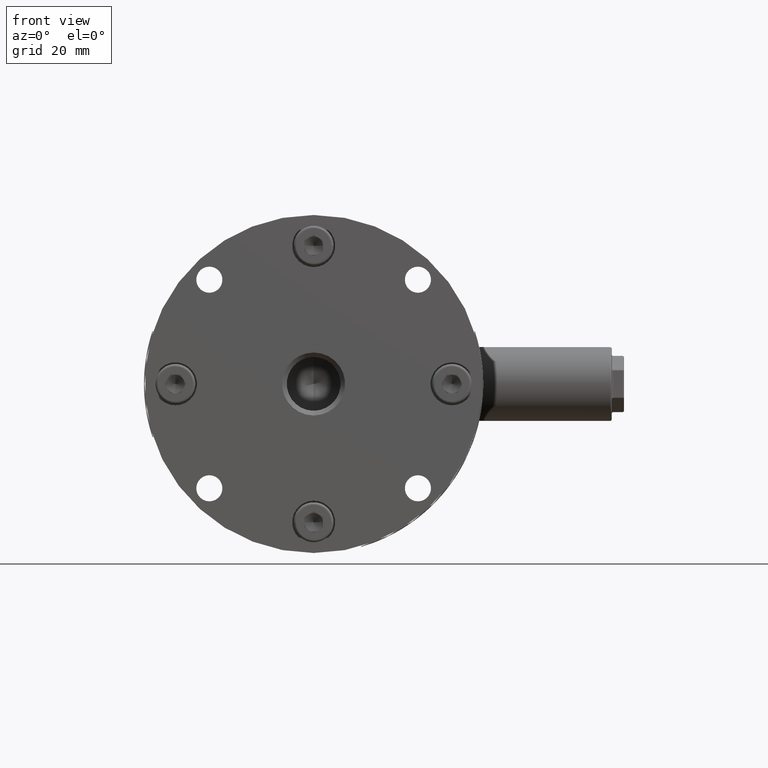
[diagram: clean part render]
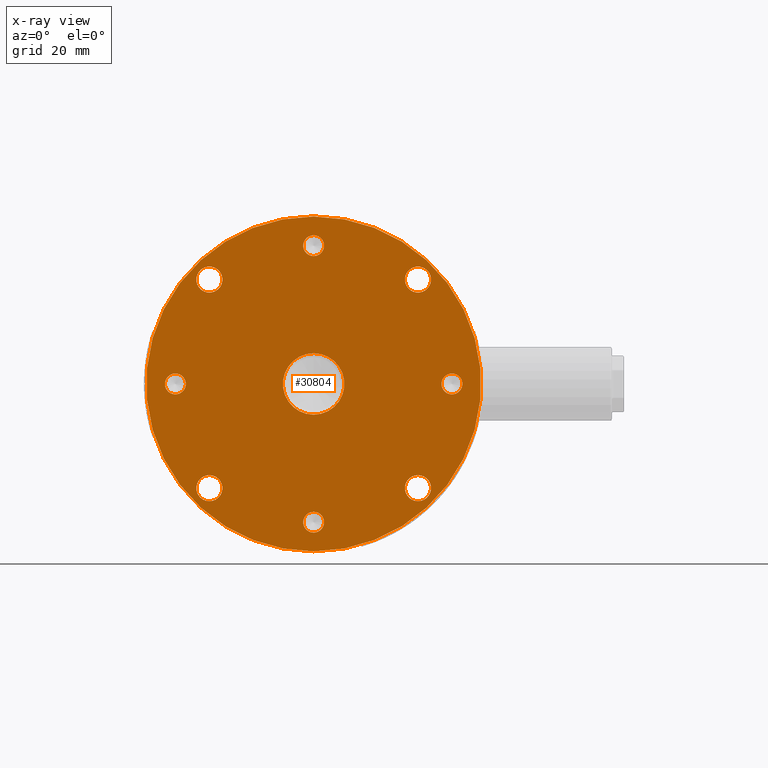
[diagram: x-ray — body ghosted, one internal face saturated and labeled with its STEP entity id]
A machine part, front view, then the same camera in x-ray: the body is ghosted and one INTERNAL B-rep face — a face not visible from any outside direction — is saturated and labeled: STEP entity #30804.
In plain terms, the highlighted planar face has unit normal (0, -1, 0).
Its self-contained STEP definition (entity closure, byte-faithful):
#7 = CARTESIAN_POINT ( 'NONE',  ( -45.00000000000000000, 15.00000000000000000, 4.011592430874214600E-032 ) ) ;
#126 = VERTEX_POINT ( 'NONE', #13926 ) ;
#383 = DIRECTION ( 'NONE',  ( 0.0000000000000000000, -1.000000000000000000, 0.0000000000000000000 ) ) ;
#397 = ORIENTED_EDGE ( 'NONE', *, *, #9925, .T. ) ;
#515 = ORIENTED_EDGE ( 'NONE', *, *, #18841, .F. ) ;
#919 = FACE_BOUND ( 'NONE', #27840, .T. ) ;
#1902 = CARTESIAN_POINT ( 'NONE',  ( -33.94112549695434900, 15.00000000000000000, -33.94112549695425000 ) ) ;
#1975 = VERTEX_POINT ( 'NONE', #8916 ) ;
#2923 = CARTESIAN_POINT ( 'NONE',  ( -33.94112549695434900, 15.00000000000000000, 29.69112549695425000 ) ) ;
#3243 = CIRCLE ( 'NONE', #28361, 3.400000000000000400 ) ;
#3322 = EDGE_CURVE ( 'NONE', #34028, #10095, #34217, .T. ) ;
#3567 = ORIENTED_EDGE ( 'NONE', *, *, #23781, .F. ) ;
#3692 = CIRCLE ( 'NONE', #29966, 54.50000000000000000 ) ;
#3703 = ORIENTED_EDGE ( 'NONE', *, *, #21674, .F. ) ;
#3731 = CARTESIAN_POINT ( 'NONE',  ( 33.94112549695434900, 15.00000000000000000, 33.94112549695425000 ) ) ;
#3811 = AXIS2_PLACEMENT_3D ( 'NONE', #13523, #19085, #33866 ) ;
#4180 = CIRCLE ( 'NONE', #36845, 4.250000000000000000 ) ;
#4395 = EDGE_CURVE ( 'NONE', #35860, #14597, #12822, .T. ) ;
#4865 = DIRECTION ( 'NONE',  ( 0.0000000000000000000, -1.000000000000000000, 0.0000000000000000000 ) ) ;
#5120 = CARTESIAN_POINT ( 'NONE',  ( 33.94112549695434900, 15.00000000000000000, 38.19112549695425000 ) ) ;
#5599 = CARTESIAN_POINT ( 'NONE',  ( -33.94112549695434900, 15.00000000000000000, -38.19112549695425000 ) ) ;
#5731 = CIRCLE ( 'NONE', #20102, 10.00000000000000000 ) ;
#5836 = ORIENTED_EDGE ( 'NONE', *, *, #27653, .F. ) ;
#5990 = CARTESIAN_POINT ( 'NONE',  ( -33.94112549695434900, 15.00000000000000000, -33.94112549695425000 ) ) ;
#6390 = CARTESIAN_POINT ( 'NONE',  ( -45.00000000000000000, 15.00000000000000000, -3.399999999999999900 ) ) ;
#6739 = AXIS2_PLACEMENT_3D ( 'NONE', #5990, #26359, #14939 ) ;
#6881 = FACE_BOUND ( 'NONE', #25337, .T. ) ;
#6991 = CARTESIAN_POINT ( 'NONE',  ( 33.94112549695434900, 15.00000000000000000, 29.69112549695425000 ) ) ;
#7035 = ORIENTED_EDGE ( 'NONE', *, *, #9577, .F. ) ;
#7421 = EDGE_LOOP ( 'NONE', ( #28508, #37019 ) ) ;
#7498 = DIRECTION ( 'NONE',  ( 0.0000000000000000000, 0.0000000000000000000, -1.000000000000000000 ) ) ;
#7516 = CARTESIAN_POINT ( 'NONE',  ( -33.94112549695434900, 15.00000000000000000, 33.94112549695425000 ) ) ;
#7519 = AXIS2_PLACEMENT_3D ( 'NONE', #18665, #10195, #15634 ) ;
#7893 = VERTEX_POINT ( 'NONE', #27073 ) ;
#7940 = DIRECTION ( 'NONE',  ( 0.0000000000000000000, 0.0000000000000000000, -1.000000000000000000 ) ) ;
#8916 = CARTESIAN_POINT ( 'NONE',  ( 45.00000000000000000, 15.00000000000000000, -3.399999999999999900 ) ) ;
#9285 = VERTEX_POINT ( 'NONE', #29774 ) ;
#9549 = AXIS2_PLACEMENT_3D ( 'NONE', #15319, #21187, #24089 ) ;
#9577 = EDGE_CURVE ( 'NONE', #10095, #34028, #16675, .T. ) ;
#9803 = PLANE ( 'NONE',  #34794 ) ;
#9925 = EDGE_CURVE ( 'NONE', #24041, #37775, #29845, .T. ) ;
#10054 = DIRECTION ( 'NONE',  ( 0.0000000000000000000, -1.000000000000000000, 0.0000000000000000000 ) ) ;
#10095 = VERTEX_POINT ( 'NONE', #35952 ) ;
#10195 = DIRECTION ( 'NONE',  ( 0.0000000000000000000, -1.000000000000000000, 6.123031769111888800E-017 ) ) ;
#10499 = DIRECTION ( 'NONE',  ( 0.0000000000000000000, -1.000000000000000000, 6.123031769111888800E-017 ) ) ;
#10731 = EDGE_CURVE ( 'NONE', #37047, #15554, #28017, .T. ) ;
#11502 = DIRECTION ( 'NONE',  ( 0.0000000000000000000, -1.000000000000000000, 6.123031769111888800E-017 ) ) ;
#12129 = AXIS2_PLACEMENT_3D ( 'NONE', #15667, #36045, #25046 ) ;
#12601 = CARTESIAN_POINT ( 'NONE',  ( 0.0000000000000000000, 15.00000000000000000, 0.0000000000000000000 ) ) ;
#12822 = CIRCLE ( 'NONE', #24171, 4.250000000000000000 ) ;
#12845 = AXIS2_PLACEMENT_3D ( 'NONE', #32632, #15206, #24340 ) ;
#13373 = CARTESIAN_POINT ( 'NONE',  ( 0.0000000000000000000, 15.00000000000000000, 0.0000000000000000000 ) ) ;
#13394 = DIRECTION ( 'NONE',  ( 0.0000000000000000000, -1.000000000000000000, 6.123031769111888800E-017 ) ) ;
#13523 = CARTESIAN_POINT ( 'NONE',  ( -33.94112549695434900, 15.00000000000000000, 33.94112549695425000 ) ) ;
#13910 = CARTESIAN_POINT ( 'NONE',  ( 33.94112549695434900, 15.00000000000000000, 33.94112549695425000 ) ) ;
#13926 = CARTESIAN_POINT ( 'NONE',  ( 1.224646799147353300E-015, 15.00000000000000000, 10.00000000000000000 ) ) ;
#14215 = CARTESIAN_POINT ( 'NONE',  ( -45.00000000000000000, 15.00000000000000000, 4.011592430874214600E-032 ) ) ;
#14597 = VERTEX_POINT ( 'NONE', #6991 ) ;
#14651 = FACE_BOUND ( 'NONE', #24247, .T. ) ;
#14692 = EDGE_CURVE ( 'NONE', #17756, #126, #5731, .T. ) ;
#14773 = CARTESIAN_POINT ( 'NONE',  ( 0.0000000000000000000, 15.00000000000000000, -10.00000000000000000 ) ) ;
#14845 = DIRECTION ( 'NONE',  ( 0.0000000000000000000, -1.000000000000000000, 6.123031769111888800E-017 ) ) ;
#14939 = DIRECTION ( 'NONE',  ( 0.0000000000000000000, 0.0000000000000000000, -1.000000000000000000 ) ) ;
#15206 = DIRECTION ( 'NONE',  ( 0.0000000000000000000, -1.000000000000000000, 0.0000000000000000000 ) ) ;
#15319 = CARTESIAN_POINT ( 'NONE',  ( 33.94112549695434900, 15.00000000000000000, -33.94112549695425000 ) ) ;
#15365 = ORIENTED_EDGE ( 'NONE', *, *, #27144, .F. ) ;
#15531 = FACE_BOUND ( 'NONE', #21486, .T. ) ;
#15554 = VERTEX_POINT ( 'NONE', #6390 ) ;
#15573 = CIRCLE ( 'NONE', #32781, 3.399999999999999900 ) ;
#15634 = DIRECTION ( 'NONE',  ( 0.0000000000000000000, 0.0000000000000000000, -1.000000000000000000 ) ) ;
#15667 = CARTESIAN_POINT ( 'NONE',  ( 45.00000000000000000, 15.00000000000000000, 4.011592430874214600E-032 ) ) ;
#15732 = DIRECTION ( 'NONE',  ( 0.0000000000000000000, 0.0000000000000000000, -1.000000000000000000 ) ) ;
#15804 = CARTESIAN_POINT ( 'NONE',  ( 33.94112549695434900, 15.00000000000000000, -29.69112549695425000 ) ) ;
#16028 = AXIS2_PLACEMENT_3D ( 'NONE', #1902, #16707, #7940 ) ;
#16197 = AXIS2_PLACEMENT_3D ( 'NONE', #29457, #383, #32138 ) ;
#16218 = DIRECTION ( 'NONE',  ( 0.0000000000000000000, 0.0000000000000000000, -1.000000000000000000 ) ) ;
#16511 = ORIENTED_EDGE ( 'NONE', *, *, #10731, .F. ) ;
#16675 = CIRCLE ( 'NONE', #24009, 4.249999999999996400 ) ;
#16707 = DIRECTION ( 'NONE',  ( 0.0000000000000000000, -1.000000000000000000, 6.123031769111888800E-017 ) ) ;
#16803 = DIRECTION ( 'NONE',  ( 0.0000000000000000000, 0.0000000000000000000, -1.000000000000000000 ) ) ;
#16883 = FACE_OUTER_BOUND ( 'NONE', #36573, .T. ) ;
#16941 = DIRECTION ( 'NONE',  ( 0.0000000000000000000, 0.0000000000000000000, -1.000000000000000000 ) ) ;
#16976 = ORIENTED_EDGE ( 'NONE', *, *, #37840, .F. ) ;
#17756 = VERTEX_POINT ( 'NONE', #14773 ) ;
#17780 = ORIENTED_EDGE ( 'NONE', *, *, #19512, .F. ) ;
#17896 = EDGE_CURVE ( 'NONE', #20341, #19524, #21061, .T. ) ;
#18001 = CARTESIAN_POINT ( 'NONE',  ( 0.0000000000000000000, 15.00000000000000000, -48.39999999999999900 ) ) ;
#18263 = CIRCLE ( 'NONE', #7519, 3.400000000000000400 ) ;
#18266 = FACE_BOUND ( 'NONE', #32372, .T. ) ;
#18665 = CARTESIAN_POINT ( 'NONE',  ( 0.0000000000000000000, 15.00000000000000000, -45.00000000000000000 ) ) ;
#18841 = EDGE_CURVE ( 'NONE', #7893, #20245, #25069, .T. ) ;
#19085 = DIRECTION ( 'NONE',  ( 0.0000000000000000000, -1.000000000000000000, 6.123031769111888800E-017 ) ) ;
#19164 = CARTESIAN_POINT ( 'NONE',  ( -45.00000000000000000, 15.00000000000000000, 3.400000000000000400 ) ) ;
#19193 = CARTESIAN_POINT ( 'NONE',  ( 6.704941225331758800E-015, 15.00000000000000000, -54.50000000000000000 ) ) ;
#19488 = EDGE_LOOP ( 'NONE', ( #5836, #16511 ) ) ;
#19512 = EDGE_CURVE ( 'NONE', #19834, #29877, #18263, .T. ) ;
#19524 = VERTEX_POINT ( 'NONE', #27333 ) ;
#19670 = CARTESIAN_POINT ( 'NONE',  ( 4.163799117101000100E-016, 15.00000000000000000, -41.60000000000000100 ) ) ;
#19675 = ORIENTED_EDGE ( 'NONE', *, *, #3322, .F. ) ;
#19834 = VERTEX_POINT ( 'NONE', #18001 ) ;
#20102 = AXIS2_PLACEMENT_3D ( 'NONE', #13373, #31024, #7498 ) ;
#20245 = VERTEX_POINT ( 'NONE', #5599 ) ;
#20341 = VERTEX_POINT ( 'NONE', #2923 ) ;
#20619 = AXIS2_PLACEMENT_3D ( 'NONE', #14215, #28835, #28961 ) ;
#21061 = CIRCLE ( 'NONE', #3811, 4.250000000000000000 ) ;
#21085 = DIRECTION ( 'NONE',  ( 0.0000000000000000000, -1.000000000000000000, 6.123031769111888800E-017 ) ) ;
#21187 = DIRECTION ( 'NONE',  ( 0.0000000000000000000, -1.000000000000000000, 6.123031769111888800E-017 ) ) ;
#21203 = AXIS2_PLACEMENT_3D ( 'NONE', #27410, #21085, #35972 ) ;
#21383 = DIRECTION ( 'NONE',  ( 0.0000000000000000000, 0.0000000000000000000, -1.000000000000000000 ) ) ;
#21486 = EDGE_LOOP ( 'NONE', ( #3703, #25825 ) ) ;
#21560 = CARTESIAN_POINT ( 'NONE',  ( 0.0000000000000000000, 15.00000000000000000, -45.00000000000000000 ) ) ;
#21674 = EDGE_CURVE ( 'NONE', #1975, #34453, #35049, .T. ) ;
#22383 = FACE_BOUND ( 'NONE', #26975, .T. ) ;
#22693 = CARTESIAN_POINT ( 'NONE',  ( 45.00000000000000000, 15.00000000000000000, 4.011592430874214600E-032 ) ) ;
#22871 = CIRCLE ( 'NONE', #24397, 4.250000000000000000 ) ;
#23224 = EDGE_CURVE ( 'NONE', #14597, #35860, #4180, .T. ) ;
#23271 = CARTESIAN_POINT ( 'NONE',  ( 0.0000000000000000000, 15.00000000000000000, 41.60000000000000100 ) ) ;
#23295 = FACE_BOUND ( 'NONE', #26135, .T. ) ;
#23781 = EDGE_CURVE ( 'NONE', #19524, #20341, #22871, .T. ) ;
#24003 = DIRECTION ( 'NONE',  ( 0.0000000000000000000, -1.000000000000000000, 6.123031769111888800E-017 ) ) ;
#24009 = AXIS2_PLACEMENT_3D ( 'NONE', #30245, #30378, #15732 ) ;
#24041 = VERTEX_POINT ( 'NONE', #19193 ) ;
#24089 = DIRECTION ( 'NONE',  ( 0.0000000000000000000, 0.0000000000000000000, -1.000000000000000000 ) ) ;
#24171 = AXIS2_PLACEMENT_3D ( 'NONE', #13910, #34235, #16803 ) ;
#24186 = CIRCLE ( 'NONE', #12129, 3.399999999999999900 ) ;
#24216 = ORIENTED_EDGE ( 'NONE', *, *, #17896, .F. ) ;
#24247 = EDGE_LOOP ( 'NONE', ( #17780, #16976 ) ) ;
#24340 = DIRECTION ( 'NONE',  ( 0.0000000000000000000, 0.0000000000000000000, -1.000000000000000000 ) ) ;
#24397 = AXIS2_PLACEMENT_3D ( 'NONE', #7516, #13394, #37177 ) ;
#24670 = CIRCLE ( 'NONE', #29236, 3.400000000000000400 ) ;
#25046 = DIRECTION ( 'NONE',  ( 0.0000000000000000000, 0.0000000000000000000, -1.000000000000000000 ) ) ;
#25069 = CIRCLE ( 'NONE', #16028, 4.249999999999996400 ) ;
#25337 = EDGE_LOOP ( 'NONE', ( #35233, #37655 ) ) ;
#25825 = ORIENTED_EDGE ( 'NONE', *, *, #30463, .F. ) ;
#26135 = EDGE_LOOP ( 'NONE', ( #37503, #515 ) ) ;
#26213 = CIRCLE ( 'NONE', #21203, 3.400000000000000400 ) ;
#26359 = DIRECTION ( 'NONE',  ( 0.0000000000000000000, -1.000000000000000000, 6.123031769111888800E-017 ) ) ;
#26959 = CIRCLE ( 'NONE', #6739, 4.249999999999996400 ) ;
#26975 = EDGE_LOOP ( 'NONE', ( #33818, #15365 ) ) ;
#27073 = CARTESIAN_POINT ( 'NONE',  ( -33.94112549695434900, 15.00000000000000000, -29.69112549695425000 ) ) ;
#27144 = EDGE_CURVE ( 'NONE', #9285, #32981, #3243, .T. ) ;
#27250 = DIRECTION ( 'NONE',  ( 0.0000000000000000000, -1.000000000000000000, 6.123031769111888800E-017 ) ) ;
#27333 = CARTESIAN_POINT ( 'NONE',  ( -33.94112549695434900, 15.00000000000000000, 38.19112549695425000 ) ) ;
#27363 = FACE_BOUND ( 'NONE', #19488, .T. ) ;
#27410 = CARTESIAN_POINT ( 'NONE',  ( 0.0000000000000000000, 15.00000000000000000, 45.00000000000000000 ) ) ;
#27653 = EDGE_CURVE ( 'NONE', #15554, #37047, #15573, .T. ) ;
#27669 = CARTESIAN_POINT ( 'NONE',  ( 0.0000000000000000000, 15.00000000000000000, 0.0000000000000000000 ) ) ;
#27840 = EDGE_LOOP ( 'NONE', ( #24216, #3567 ) ) ;
#27887 = CARTESIAN_POINT ( 'NONE',  ( 0.0000000000000000000, 15.00000000000000000, 45.00000000000000000 ) ) ;
#28017 = CIRCLE ( 'NONE', #20619, 3.399999999999999900 ) ;
#28233 = CIRCLE ( 'NONE', #12845, 10.00000000000000000 ) ;
#28361 = AXIS2_PLACEMENT_3D ( 'NONE', #27887, #10499, #31432 ) ;
#28508 = ORIENTED_EDGE ( 'NONE', *, *, #23224, .F. ) ;
#28835 = DIRECTION ( 'NONE',  ( 0.0000000000000000000, -1.000000000000000000, 6.123031769111888800E-017 ) ) ;
#28961 = DIRECTION ( 'NONE',  ( 0.0000000000000000000, 0.0000000000000000000, -1.000000000000000000 ) ) ;
#28977 = ORIENTED_EDGE ( 'NONE', *, *, #37370, .T. ) ;
#29236 = AXIS2_PLACEMENT_3D ( 'NONE', #21560, #27250, #36428 ) ;
#29257 = AXIS2_PLACEMENT_3D ( 'NONE', #22693, #11502, #16941 ) ;
#29457 = CARTESIAN_POINT ( 'NONE',  ( 0.0000000000000000000, 15.00000000000000000, 0.0000000000000000000 ) ) ;
#29483 = EDGE_CURVE ( 'NONE', #126, #17756, #28233, .T. ) ;
#29774 = CARTESIAN_POINT ( 'NONE',  ( 4.163799117101000100E-016, 15.00000000000000000, 48.39999999999999900 ) ) ;
#29845 = CIRCLE ( 'NONE', #16197, 54.50000000000000000 ) ;
#29877 = VERTEX_POINT ( 'NONE', #19670 ) ;
#29966 = AXIS2_PLACEMENT_3D ( 'NONE', #27669, #4865, #16218 ) ;
#30245 = CARTESIAN_POINT ( 'NONE',  ( 33.94112549695434900, 15.00000000000000000, -33.94112549695425000 ) ) ;
#30360 = EDGE_CURVE ( 'NONE', #20245, #7893, #26959, .T. ) ;
#30378 = DIRECTION ( 'NONE',  ( 0.0000000000000000000, -1.000000000000000000, 6.123031769111888800E-017 ) ) ;
#30463 = EDGE_CURVE ( 'NONE', #34453, #1975, #24186, .T. ) ;
#30715 = DIRECTION ( 'NONE',  ( 0.0000000000000000000, 0.0000000000000000000, -1.000000000000000000 ) ) ;
#30804 = ADVANCED_FACE ( 'NONE', ( #16883, #31936, #18266, #919, #23295, #15531, #27363, #22383, #14651, #6881 ), #9803, .T. ) ;
#31024 = DIRECTION ( 'NONE',  ( 0.0000000000000000000, -1.000000000000000000, 0.0000000000000000000 ) ) ;
#31432 = DIRECTION ( 'NONE',  ( 0.0000000000000000000, 0.0000000000000000000, -1.000000000000000000 ) ) ;
#31936 = FACE_BOUND ( 'NONE', #7421, .T. ) ;
#32138 = DIRECTION ( 'NONE',  ( 0.0000000000000000000, 0.0000000000000000000, -1.000000000000000000 ) ) ;
#32372 = EDGE_LOOP ( 'NONE', ( #7035, #19675 ) ) ;
#32632 = CARTESIAN_POINT ( 'NONE',  ( 0.0000000000000000000, 15.00000000000000000, 0.0000000000000000000 ) ) ;
#32740 = CARTESIAN_POINT ( 'NONE',  ( 0.0000000000000000000, 15.00000000000000000, 54.50000000000000000 ) ) ;
#32781 = AXIS2_PLACEMENT_3D ( 'NONE', #7, #14845, #30715 ) ;
#32981 = VERTEX_POINT ( 'NONE', #23271 ) ;
#33639 = EDGE_CURVE ( 'NONE', #32981, #9285, #26213, .T. ) ;
#33818 = ORIENTED_EDGE ( 'NONE', *, *, #33639, .F. ) ;
#33866 = DIRECTION ( 'NONE',  ( 0.0000000000000000000, 0.0000000000000000000, -1.000000000000000000 ) ) ;
#34028 = VERTEX_POINT ( 'NONE', #15804 ) ;
#34217 = CIRCLE ( 'NONE', #9549, 4.249999999999996400 ) ;
#34235 = DIRECTION ( 'NONE',  ( 0.0000000000000000000, -1.000000000000000000, 6.123031769111888800E-017 ) ) ;
#34453 = VERTEX_POINT ( 'NONE', #37013 ) ;
#34794 = AXIS2_PLACEMENT_3D ( 'NONE', #12601, #10054, #21383 ) ;
#35049 = CIRCLE ( 'NONE', #29257, 3.399999999999999900 ) ;
#35233 = ORIENTED_EDGE ( 'NONE', *, *, #14692, .F. ) ;
#35860 = VERTEX_POINT ( 'NONE', #5120 ) ;
#35952 = CARTESIAN_POINT ( 'NONE',  ( 33.94112549695434900, 15.00000000000000000, -38.19112549695425000 ) ) ;
#35972 = DIRECTION ( 'NONE',  ( 0.0000000000000000000, 0.0000000000000000000, -1.000000000000000000 ) ) ;
#35982 = DIRECTION ( 'NONE',  ( 0.0000000000000000000, 0.0000000000000000000, -1.000000000000000000 ) ) ;
#36045 = DIRECTION ( 'NONE',  ( 0.0000000000000000000, -1.000000000000000000, 6.123031769111888800E-017 ) ) ;
#36428 = DIRECTION ( 'NONE',  ( 0.0000000000000000000, 0.0000000000000000000, -1.000000000000000000 ) ) ;
#36573 = EDGE_LOOP ( 'NONE', ( #28977, #397 ) ) ;
#36845 = AXIS2_PLACEMENT_3D ( 'NONE', #3731, #24003, #35982 ) ;
#37013 = CARTESIAN_POINT ( 'NONE',  ( 45.00000000000000000, 15.00000000000000000, 3.400000000000000400 ) ) ;
#37019 = ORIENTED_EDGE ( 'NONE', *, *, #4395, .F. ) ;
#37047 = VERTEX_POINT ( 'NONE', #19164 ) ;
#37177 = DIRECTION ( 'NONE',  ( 0.0000000000000000000, 0.0000000000000000000, -1.000000000000000000 ) ) ;
#37370 = EDGE_CURVE ( 'NONE', #37775, #24041, #3692, .T. ) ;
#37503 = ORIENTED_EDGE ( 'NONE', *, *, #30360, .F. ) ;
#37655 = ORIENTED_EDGE ( 'NONE', *, *, #29483, .F. ) ;
#37775 = VERTEX_POINT ( 'NONE', #32740 ) ;
#37840 = EDGE_CURVE ( 'NONE', #29877, #19834, #24670, .T. ) ;